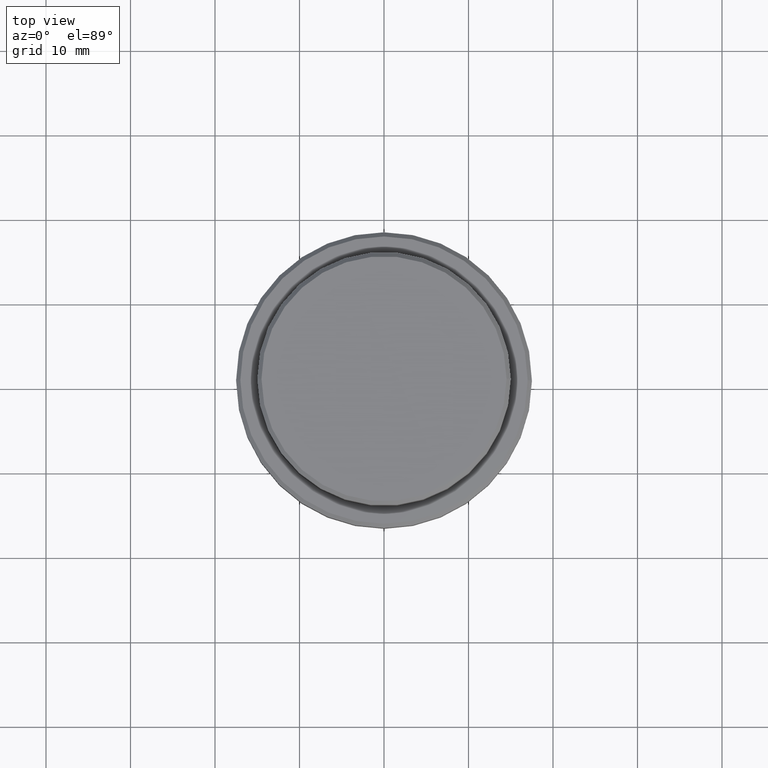
[diagram: clean part render]
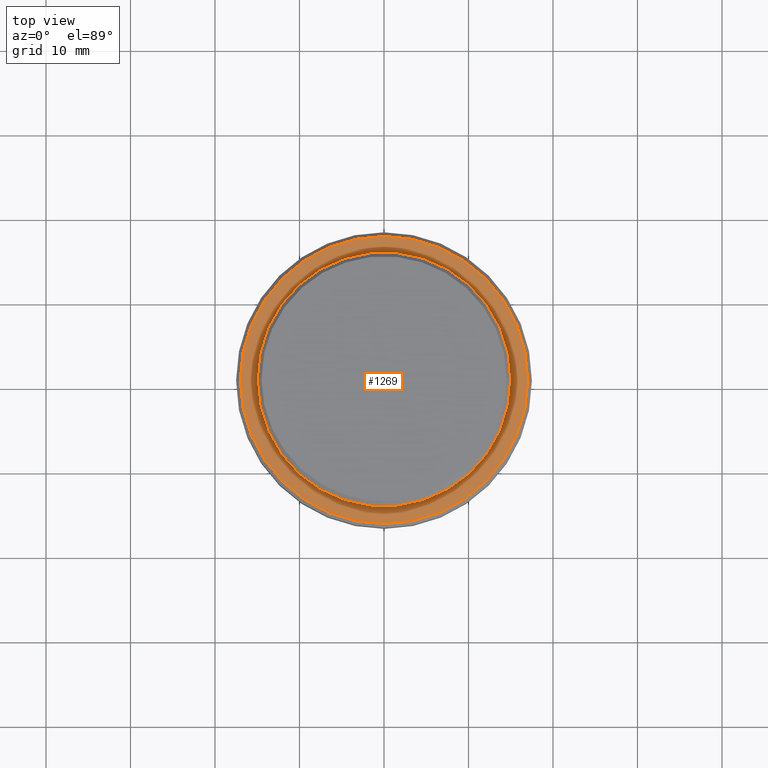
[diagram: same view with one face highlighted and labeled with its STEP entity id]
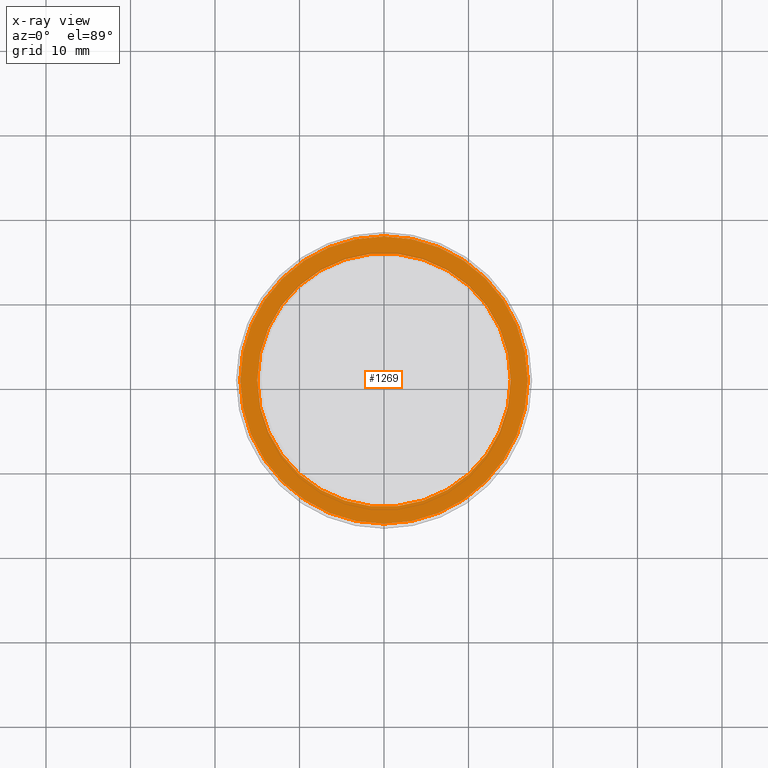
[diagram: x-ray of the same camera — body ghosted, the highlighted face saturated]
A machine part, top view. The second image highlights one B-rep face of the part: STEP entity #1269.
The next image is the same camera in x-ray: the body ghosted, the highlighted face saturated — about 0% of this face is hidden behind the body in this view.
In plain terms, the highlighted planar face has unit normal (0, -0, 1).
Its self-contained STEP definition (entity closure, byte-faithful):
#46 = CIRCLE ( 'NONE', #134, 14.99999999999999289 ) ;
#48 = AXIS2_PLACEMENT_3D ( 'NONE', #303, #83, #1393 ) ;
#63 = EDGE_CURVE ( 'NONE', #762, #681, #46, .T. ) ;
#83 = DIRECTION ( 'NONE',  ( -0.000000000000000000, -0.000000000000000000, 1.000000000000000000 ) ) ;
#99 = ORIENTED_EDGE ( 'NONE', *, *, #135, .T. ) ;
#120 = CARTESIAN_POINT ( 'NONE',  ( 0.000000000000000000, 0.000000000000000000, -9.000000000000000000 ) ) ;
#134 = AXIS2_PLACEMENT_3D ( 'NONE', #120, #219, #1403 ) ;
#135 = EDGE_CURVE ( 'NONE', #681, #762, #868, .T. ) ;
#207 = CIRCLE ( 'NONE', #1305, 16.99999999999999289 ) ;
#219 = DIRECTION ( 'NONE',  ( 0.000000000000000000, 0.000000000000000000, -1.000000000000000000 ) ) ;
#223 = VERTEX_POINT ( 'NONE', #706 ) ;
#231 = VERTEX_POINT ( 'NONE', #842 ) ;
#245 = AXIS2_PLACEMENT_3D ( 'NONE', #562, #466, #901 ) ;
#303 = CARTESIAN_POINT ( 'NONE',  ( 0.000000000000000000, 0.000000000000000000, -9.000000000000000000 ) ) ;
#311 = EDGE_LOOP ( 'NONE', ( #99, #1339 ) ) ;
#362 = ORIENTED_EDGE ( 'NONE', *, *, #447, .T. ) ;
#370 = CARTESIAN_POINT ( 'NONE',  ( -14.99999999999999289, 1.836970198721028800E-15, -9.000000000000000000 ) ) ;
#402 = FACE_BOUND ( 'NONE', #311, .T. ) ;
#425 = CARTESIAN_POINT ( 'NONE',  ( 14.99999999999999289, 0.000000000000000000, -9.000000000000000000 ) ) ;
#447 = EDGE_CURVE ( 'NONE', #223, #231, #1024, .T. ) ;
#466 = DIRECTION ( 'NONE',  ( 0.000000000000000000, 0.000000000000000000, -1.000000000000000000 ) ) ;
#498 = FACE_OUTER_BOUND ( 'NONE', #786, .T. ) ;
#562 = CARTESIAN_POINT ( 'NONE',  ( 0.000000000000000000, 0.000000000000000000, -9.000000000000000000 ) ) ;
#578 = DIRECTION ( 'NONE',  ( 1.000000000000000000, 0.000000000000000000, 0.000000000000000000 ) ) ;
#661 = AXIS2_PLACEMENT_3D ( 'NONE', #926, #1386, #822 ) ;
#681 = VERTEX_POINT ( 'NONE', #425 ) ;
#706 = CARTESIAN_POINT ( 'NONE',  ( 16.99999999999999289, 2.112515728529184067E-15, -9.000000000000000000 ) ) ;
#726 = PLANE ( 'NONE',  #661 ) ;
#762 = VERTEX_POINT ( 'NONE', #370 ) ;
#776 = EDGE_CURVE ( 'NONE', #231, #223, #207, .T. ) ;
#786 = EDGE_LOOP ( 'NONE', ( #899, #362 ) ) ;
#822 = DIRECTION ( 'NONE',  ( 1.000000000000000000, 0.000000000000000000, 0.000000000000000000 ) ) ;
#842 = CARTESIAN_POINT ( 'NONE',  ( -16.99999999999999289, 0.000000000000000000, -9.000000000000000000 ) ) ;
#868 = CIRCLE ( 'NONE', #245, 14.99999999999999289 ) ;
#899 = ORIENTED_EDGE ( 'NONE', *, *, #776, .T. ) ;
#901 = DIRECTION ( 'NONE',  ( 1.000000000000000000, 0.000000000000000000, 0.000000000000000000 ) ) ;
#926 = CARTESIAN_POINT ( 'NONE',  ( 0.000000000000000000, 14.49999999999999467, -9.000000000000000000 ) ) ;
#1024 = CIRCLE ( 'NONE', #48, 16.99999999999999289 ) ;
#1126 = CARTESIAN_POINT ( 'NONE',  ( 0.000000000000000000, 0.000000000000000000, -9.000000000000000000 ) ) ;
#1204 = DIRECTION ( 'NONE',  ( -0.000000000000000000, -0.000000000000000000, 1.000000000000000000 ) ) ;
#1269 = ADVANCED_FACE ( 'NONE', ( #498, #402 ), #726, .T. ) ;
#1305 = AXIS2_PLACEMENT_3D ( 'NONE', #1126, #1204, #578 ) ;
#1339 = ORIENTED_EDGE ( 'NONE', *, *, #63, .T. ) ;
#1386 = DIRECTION ( 'NONE',  ( 0.000000000000000000, -0.000000000000000000, 1.000000000000000000 ) ) ;
#1393 = DIRECTION ( 'NONE',  ( 1.000000000000000000, 0.000000000000000000, 0.000000000000000000 ) ) ;
#1403 = DIRECTION ( 'NONE',  ( 1.000000000000000000, 0.000000000000000000, 0.000000000000000000 ) ) ;